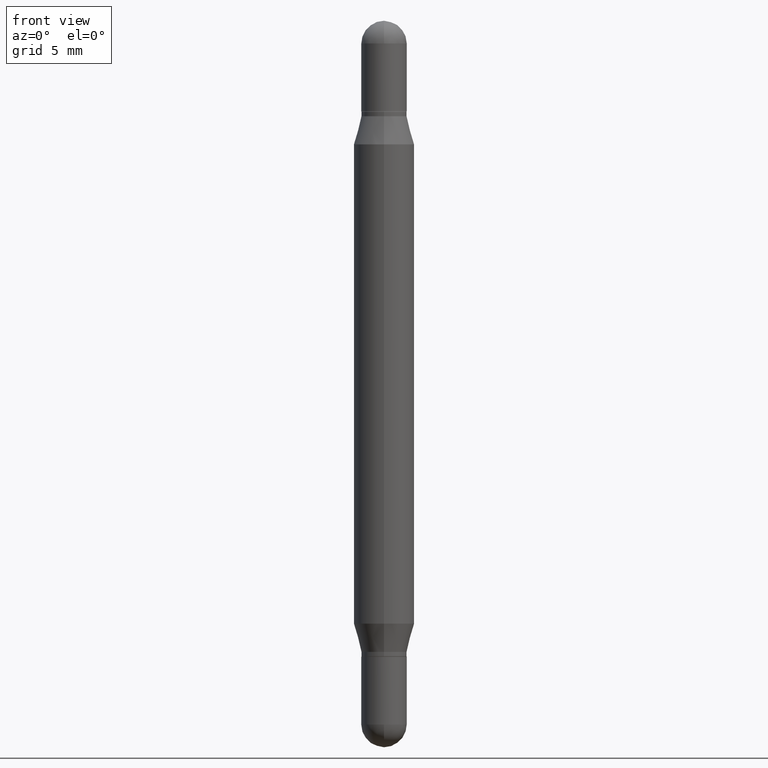
[diagram: clean part render]
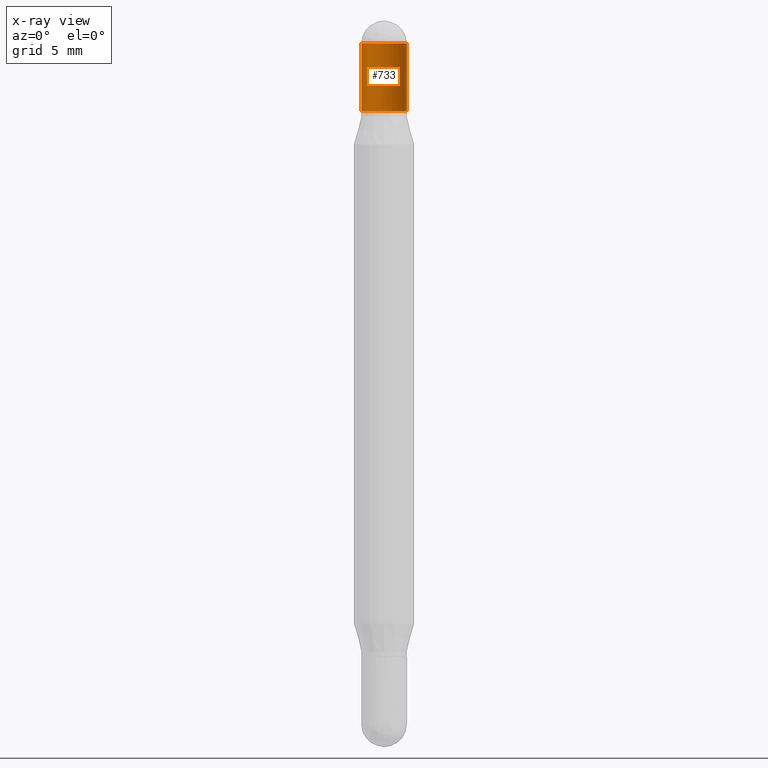
[diagram: x-ray — body ghosted, one internal face saturated and labeled with its STEP entity id]
A machine part, front view, then the same camera in x-ray: the body is ghosted and one INTERNAL B-rep face — a face not visible from any outside direction — is saturated and labeled: STEP entity #733.
In plain terms, the highlighted cylindrical surface (edge-blend (fillet) strip) has radius 1.1913 mm, axis along (-0, -0, -1).
Its self-contained STEP definition (entity closure, byte-faithful):
#39 = DIRECTION ( 'NONE',  ( -2.445468806185136877E-29, -3.479614466977828648E-15, -1.000000000000000000 ) ) ;
#83 = VERTEX_POINT ( 'NONE', #835 ) ;
#91 = DIRECTION ( 'NONE',  ( 1.000000000000000000, -6.982962677686277755E-15, 0.000000000000000000 ) ) ;
#112 = CARTESIAN_POINT ( 'NONE',  ( 0.04689999999999999725, -5.555822803949218252E-15, -1.500000000000000444 ) ) ;
#159 = DIRECTION ( 'NONE',  ( 2.445468806185136597E-29, 3.479614466977828254E-15, 1.000000000000000000 ) ) ;
#167 = VECTOR ( 'NONE', #681, 39.37007874015748143 ) ;
#168 = VECTOR ( 'NONE', #39, 39.37007874015748143 ) ;
#171 = CARTESIAN_POINT ( 'NONE',  ( 3.553510722267622201E-29, -1.720940724002502970E-16, -0.04690000000000053154 ) ) ;
#172 = DIRECTION ( 'NONE',  ( -2.445468806185136597E-29, -3.479614466977828254E-15, -1.000000000000000000 ) ) ;
#189 = CARTESIAN_POINT ( 'NONE',  ( 0.04689999999999999725, -7.433420153955320943E-16, -0.04690000000000053154 ) ) ;
#192 = CARTESIAN_POINT ( 'NONE',  ( -0.04689999999999999725, -9.408370971656158891E-17, -0.1870000000000002216 ) ) ;
#193 = DIRECTION ( 'NONE',  ( 2.445468806185136597E-29, 3.479614466977828254E-15, 1.000000000000000000 ) ) ;
#220 = CIRCLE ( 'NONE', #1034, 0.04689999999999999725 ) ;
#229 = VERTEX_POINT ( 'NONE', #189 ) ;
#255 = CYLINDRICAL_SURFACE ( 'NONE', #421, 0.04689999999999999725 ) ;
#318 = ORIENTED_EDGE ( 'NONE', *, *, #577, .T. ) ;
#323 = VERTEX_POINT ( 'NONE', #552 ) ;
#327 = DIRECTION ( 'NONE',  ( 1.000000000000000000, -6.982962677686266711E-15, 0.000000000000000000 ) ) ;
#330 = DIRECTION ( 'NONE',  ( 1.000000000000000000, -6.982962677686266711E-15, 0.000000000000000000 ) ) ;
#344 = CARTESIAN_POINT ( 'NONE',  ( -0.04689999999999999725, -9.408370971656128076E-17, -0.04690000000000053154 ) ) ;
#374 = DIRECTION ( 'NONE',  ( 1.000000000000000000, -6.982962677686266711E-15, 0.000000000000000000 ) ) ;
#415 = CARTESIAN_POINT ( 'NONE',  ( 3.210900542521084585E-29, -6.595880592238425060E-16, -0.1870000000000002216 ) ) ;
#421 = AXIS2_PLACEMENT_3D ( 'NONE', #599, #172, #91 ) ;
#427 = CARTESIAN_POINT ( 'NONE',  ( -0.04689999999999999725, -4.906564498270247118E-15, -1.500000000000000444 ) ) ;
#457 = ORIENTED_EDGE ( 'NONE', *, *, #459, .F. ) ;
#459 = EDGE_CURVE ( 'NONE', #83, #638, #921, .T. ) ;
#505 = FACE_OUTER_BOUND ( 'NONE', #805, .T. ) ;
#552 = CARTESIAN_POINT ( 'NONE',  ( 0.04689999999999999725, -9.870890088073285070E-16, -0.1870000000000002216 ) ) ;
#577 = EDGE_CURVE ( 'NONE', #323, #872, #220, .T. ) ;
#599 = CARTESIAN_POINT ( 'NONE',  ( 0.000000000000000000, -5.228321854365732350E-15, -1.500000000000000444 ) ) ;
#616 = AXIS2_PLACEMENT_3D ( 'NONE', #171, #159, #327 ) ;
#638 = VERTEX_POINT ( 'NONE', #344 ) ;
#647 = EDGE_CURVE ( 'NONE', #638, #872, #700, .T. ) ;
#674 = CIRCLE ( 'NONE', #616, 0.04689999999999999725 ) ;
#681 = DIRECTION ( 'NONE',  ( -2.445468806185136877E-29, -3.479614466977828648E-15, -1.000000000000000000 ) ) ;
#700 = LINE ( 'NONE', #427, #167 ) ;
#733 = ADVANCED_FACE ( 'NONE', ( #505 ), #255, .T. ) ;
#805 = EDGE_LOOP ( 'NONE', ( #882, #457, #1042, #1105, #318 ) ) ;
#812 = LINE ( 'NONE', #112, #168 ) ;
#834 = AXIS2_PLACEMENT_3D ( 'NONE', #966, #193, #374 ) ;
#835 = CARTESIAN_POINT ( 'NONE',  ( 3.217573560955207797E-16, 0.04689999999999990010, -0.04690000000000069114 ) ) ;
#872 = VERTEX_POINT ( 'NONE', #192 ) ;
#882 = ORIENTED_EDGE ( 'NONE', *, *, #647, .F. ) ;
#921 = CIRCLE ( 'NONE', #834, 0.04689999999999999725 ) ;
#928 = EDGE_CURVE ( 'NONE', #229, #323, #812, .T. ) ;
#966 = CARTESIAN_POINT ( 'NONE',  ( 3.553510722267622201E-29, -1.720940724002502970E-16, -0.04690000000000053154 ) ) ;
#1034 = AXIS2_PLACEMENT_3D ( 'NONE', #415, #1107, #330 ) ;
#1042 = ORIENTED_EDGE ( 'NONE', *, *, #1050, .F. ) ;
#1050 = EDGE_CURVE ( 'NONE', #229, #83, #674, .T. ) ;
#1105 = ORIENTED_EDGE ( 'NONE', *, *, #928, .T. ) ;
#1107 = DIRECTION ( 'NONE',  ( 2.445468806185136597E-29, 3.479614466977828254E-15, 1.000000000000000000 ) ) ;